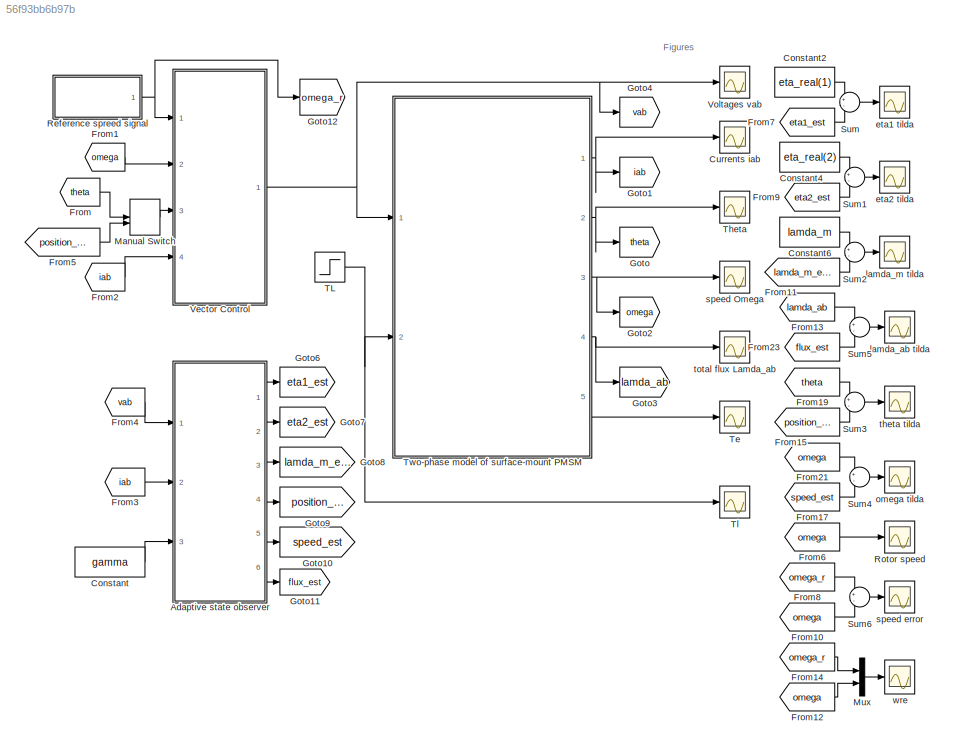
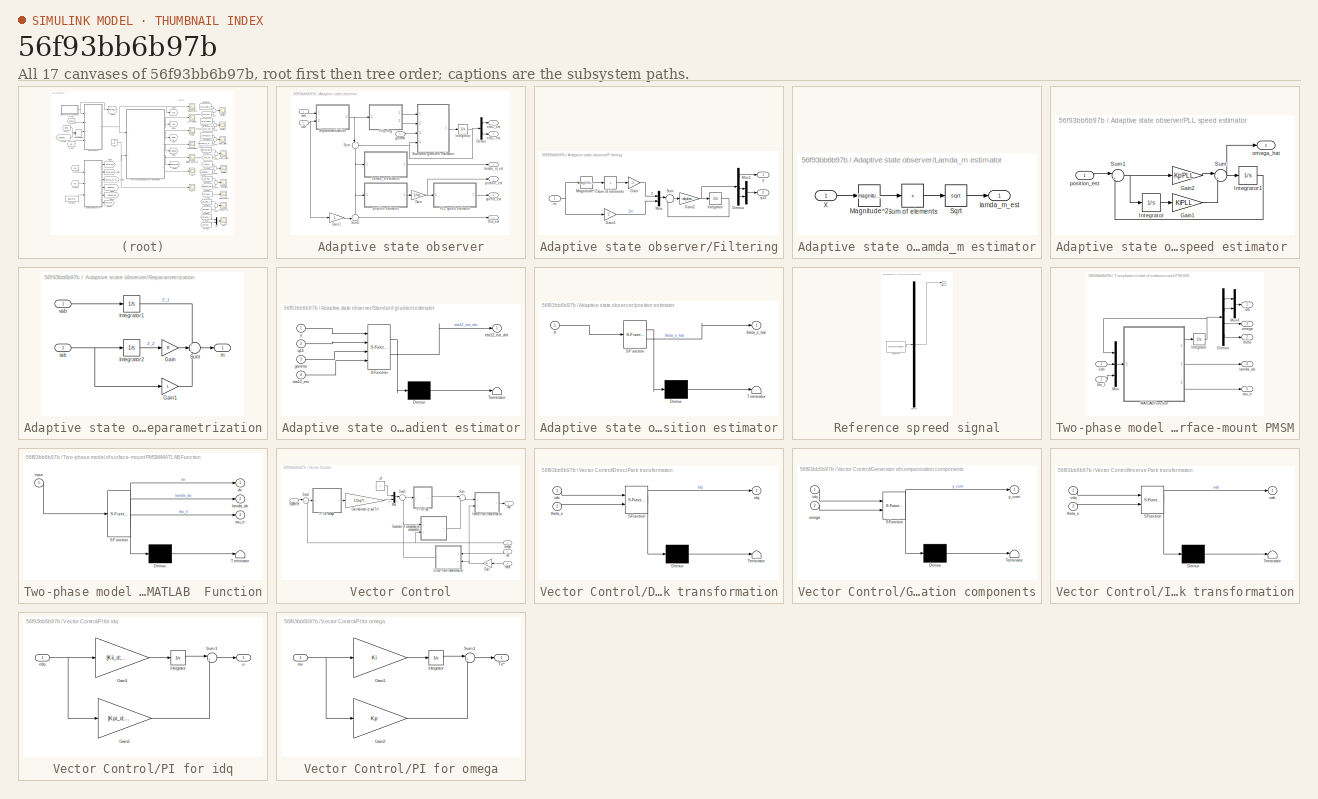
[diagram: thumbnail index - all 17 canvases of the model, root first then tree order]
MODEL slx_56f93bb6b97b
KIND model
CONFIG AbsTol = 1e-9
CONFIG EnableMultiTasking = off
CONFIG FixedStep = Ts
CONFIG MaxStep = 0.001
CONFIG MinStep = auto
CONFIG RelTol = 1e-9
CONFIG SampleTimeConstraint = Unconstrained
CONFIG SolverName = FixedStepAuto
CONFIG StartTime = 0.0
CONFIG StopTime = 1
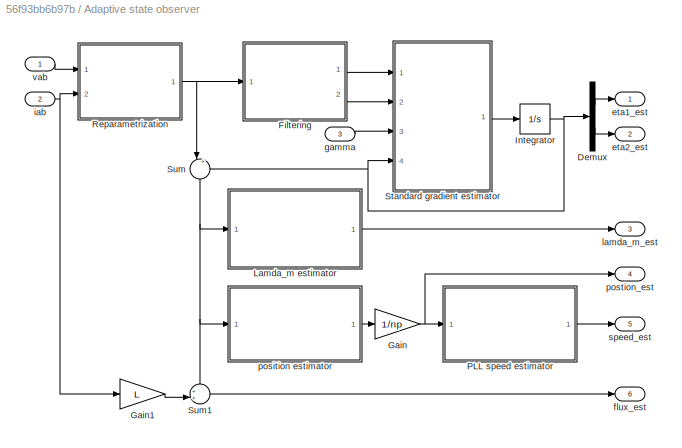
BLOCK [SubSystem] Adaptive state observer
  Ports = [3, 6]
  RequestExecContextInheritance = off
BLOCK [Demux] Adaptive state observer/Demux
  Outputs = 2
  Ports = [1, 2]
BLOCK [SubSystem] Adaptive state observer/Filtering
  Ports = [1, 2]
  RequestExecContextInheritance = off
BLOCK [Demux] Adaptive state observer/Filtering/Demux
  Outputs = 3
  Ports = [1, 3]
BLOCK [Gain] Adaptive state observer/Filtering/Gain
  Gain = -1
BLOCK [Gain] Adaptive state observer/Filtering/Gain1
  Gain = 2
BLOCK [Gain] Adaptive state observer/Filtering/Gain2
  Gain = alpha
BLOCK [Integrator] Adaptive state observer/Filtering/Integrator
  Ports = [1, 1]
BLOCK [Math] Adaptive state observer/Filtering/Magnitude^2
  Operator = magnitude^2
  Ports = [1, 1]
BLOCK [Mux] Adaptive state observer/Filtering/Mux
  DisplayOption = bar
  Inputs = 2
  Ports = [2, 1]
BLOCK [Mux] Adaptive state observer/Filtering/Mux1
  DisplayOption = bar
  Inputs = 2
  Ports = [2, 1]
BLOCK [Sum] Adaptive state observer/Filtering/Sum
  Inputs = |+-
  Ports = [2, 1]
BLOCK [Sum] Adaptive state observer/Filtering/Sum of elements
  IconShape = rectangular
  Inputs = +
  Ports = [1, 1]
BLOCK [Inport] Adaptive state observer/Filtering/m
BLOCK [Outport] Adaptive state observer/Filtering/q12
  Port = 2
BLOCK [Outport] Adaptive state observer/Filtering/y
BLOCK [Gain] Adaptive state observer/Gain
  Gain = 1/np
BLOCK [Gain] Adaptive state observer/Gain1
  Gain = L
BLOCK [Integrator] Adaptive state observer/Integrator
  InitialCondition = [eta1_est_0;eta2_est_0]
  Ports = [1, 1]
BLOCK [SubSystem] Adaptive state observer/Lamda_m estimator
  Ports = [1, 1]
  RequestExecContextInheritance = off
BLOCK [Math] Adaptive state observer/Lamda_m estimator/Magnitude^2
  Operator = magnitude^2
  Ports = [1, 1]
BLOCK [Sqrt] Adaptive state observer/Lamda_m estimator/Sqrt
BLOCK [Sum] Adaptive state observer/Lamda_m estimator/Sum of elements
  IconShape = rectangular
  Inputs = +
  Ports = [1, 1]
BLOCK [Inport] Adaptive state observer/Lamda_m estimator/X
BLOCK [Outport] Adaptive state observer/Lamda_m estimator/lamda_m_est
BLOCK [SubSystem] Adaptive state observer/PLL speed estimator 
  Ports = [1, 1]
  RequestExecContextInheritance = off
BLOCK [Gain] Adaptive state observer/PLL speed estimator /Gain1
  Gain = KiPLL
BLOCK [Gain] Adaptive state observer/PLL speed estimator /Gain2
  Gain = KpPLL
BLOCK [Integrator] Adaptive state observer/PLL speed estimator /Integrator
  Ports = [1, 1]
BLOCK [Integrator] Adaptive state observer/PLL speed estimator /Integrator1
  Ports = [1, 1]
BLOCK [Sum] Adaptive state observer/PLL speed estimator /Sum
  Inputs = |++
  Ports = [2, 1]
BLOCK [Sum] Adaptive state observer/PLL speed estimator /Sum1
  Inputs = |+-
  Ports = [2, 1]
BLOCK [Outport] Adaptive state observer/PLL speed estimator /omega_hat
BLOCK [Inport] Adaptive state observer/PLL speed estimator /position_est
BLOCK [SubSystem] Adaptive state observer/Reparametrization
  Ports = [2, 1]
  RequestExecContextInheritance = off
BLOCK [Gain] Adaptive state observer/Reparametrization/Gain
  Gain = R
BLOCK [Gain] Adaptive state observer/Reparametrization/Gain1
  Gain = L
BLOCK [Integrator] Adaptive state observer/Reparametrization/Integrator1
  InitialCondition = Z1_0
  Ports = [1, 1]
BLOCK [Integrator] Adaptive state observer/Reparametrization/Integrator2
  InitialCondition = Z2_0
  Ports = [1, 1]
BLOCK [Sum] Adaptive state observer/Reparametrization/Sum
  Inputs = +--
  Ports = [3, 1]
BLOCK [Inport] Adaptive state observer/Reparametrization/iab
  Port = 2
BLOCK [Outport] Adaptive state observer/Reparametrization/m
BLOCK [Inport] Adaptive state observer/Reparametrization/vab
BLOCK [SubSystem] Adaptive state observer/Standard gradient estimator
  ErrorFcn = Stateflow.Translate.translate
  PermitHierarchicalResolution = ExplicitOnly
  Ports = [4, 1]
  RequestExecContextInheritance = off
  SFBlockType = MATLAB Function
  TreatAsAtomicUnit = on
BLOCK [Demux] Adaptive state observer/Standard gradient estimator/ Demux 
  Outputs = 1
  Ports = [1, 1]
BLOCK [S-Function] Adaptive state observer/Standard gradient estimator/ SFunction 
  EnableBusSupport = on
  FunctionName = sf_sfun
  PortCounts = [4 2]
  Ports = [4, 2]
  SFcnIsStateOwnerBlock = off
  SFunctionDeploymentMode = off
  Tag = Stateflow S-Function 5
BLOCK [Terminator] Adaptive state observer/Standard gradient estimator/ Terminator 
BLOCK [Inport] Adaptive state observer/Standard gradient estimator/eta12_est
  Port = 4
BLOCK [Outport] Adaptive state observer/Standard gradient estimator/eta12_est_dot
BLOCK [Inport] Adaptive state observer/Standard gradient estimator/gamma
  Port = 3
BLOCK [Inport] Adaptive state observer/Standard gradient estimator/q12
  Port = 2
BLOCK [Inport] Adaptive state observer/Standard gradient estimator/y
BLOCK [Sum] Adaptive state observer/Sum
  Inputs = |++
  NameLocation = left
  Ports = [2, 1]
BLOCK [Sum] Adaptive state observer/Sum1
  Inputs = ++|
  Ports = [2, 1]
BLOCK [Outport] Adaptive state observer/eta1_est
BLOCK [Outport] Adaptive state observer/eta2_est
  Port = 2
BLOCK [Outport] Adaptive state observer/flux_est
  Port = 6
BLOCK [Inport] Adaptive state observer/gamma
  Port = 3
BLOCK [Inport] Adaptive state observer/iab
  Port = 2
BLOCK [Outport] Adaptive state observer/lamda_m_est
  Port = 3
BLOCK [SubSystem] Adaptive state observer/position estimator
  ErrorFcn = Stateflow.Translate.translate
  PermitHierarchicalResolution = ExplicitOnly
  Ports = [1, 1]
  RequestExecContextInheritance = off
  SFBlockType = MATLAB Function
  TreatAsAtomicUnit = on
BLOCK [Demux] Adaptive state observer/position estimator/ Demux 
  Outputs = 1
  Ports = [1, 1]
BLOCK [S-Function] Adaptive state observer/position estimator/ SFunction 
  EnableBusSupport = on
  FunctionName = sf_sfun
  PortCounts = [1 2]
  Ports = [1, 2]
  SFcnIsStateOwnerBlock = off
  SFunctionDeploymentMode = off
  Tag = Stateflow S-Function 6
BLOCK [Terminator] Adaptive state observer/position estimator/ Terminator 
BLOCK [Inport] Adaptive state observer/position estimator/X
BLOCK [Outport] Adaptive state observer/position estimator/theta_e_hat
BLOCK [Outport] Adaptive state observer/postion_est
  Port = 4
BLOCK [Outport] Adaptive state observer/speed_est
  Port = 5
BLOCK [Inport] Adaptive state observer/vab
BLOCK [Constant] Constant
  Value = gamma
BLOCK [Constant] Constant2
  Value = eta_real(1)
BLOCK [Constant] Constant4
  Value = eta_real(2)
BLOCK [Constant] Constant6
  Value = lamda_m
BLOCK [Scope] Currents iab
  Floating = off
  NumInputPorts = 1
  Ports = [1]
  ScopeSpecificationString = Simulink.scopes.TimeScopeBlockCfg('CurrentConfiguration', extmgr.ConfigurationSet(extmgr.Configuration('Core','General UI',true),extmgr.Configuration('Core','Source UI',true),extmgr.Configuration('Sources','WiredSimulink',true,'DataLoggingVariableName','iab','DataLogging',true,'DataLoggingSaveFormat','Array'),extmgr.Configuration('Visuals','Time Domain',true,'SerializedDisplays',{struct('MinYLimRe...<+1560ch>
BLOCK [From] From
  GotoTag = theta
BLOCK [From] From1
  GotoTag = omega
BLOCK [From] From10
  GotoTag = omega
BLOCK [From] From11
  GotoTag = lamda_m_est
BLOCK [From] From12
  GotoTag = omega
BLOCK [From] From13
  GotoTag = lamda_ab
BLOCK [From] From14
  GotoTag = omega_r
BLOCK [From] From15
  GotoTag = position_est
BLOCK [From] From17
  GotoTag = speed_est
BLOCK [From] From19
  GotoTag = theta
BLOCK [From] From2
  GotoTag = iab
BLOCK [From] From21
  GotoTag = omega
BLOCK [From] From23
  GotoTag = flux_est
BLOCK [From] From3
  GotoTag = iab
BLOCK [From] From4
  GotoTag = vab
BLOCK [From] From5
  GotoTag = position_est
BLOCK [From] From6
  GotoTag = omega
BLOCK [From] From7
  GotoTag = eta1_est
BLOCK [From] From8
  GotoTag = omega_r
BLOCK [From] From9
  GotoTag = eta2_est
BLOCK [Goto] Goto
  GotoTag = theta
BLOCK [Goto] Goto1
  GotoTag = iab
BLOCK [Goto] Goto10
  GotoTag = speed_est
BLOCK [Goto] Goto11
  GotoTag = flux_est
BLOCK [Goto] Goto12
  GotoTag = omega_r
BLOCK [Goto] Goto2
  GotoTag = omega
BLOCK [Goto] Goto3
  GotoTag = lamda_ab
BLOCK [Goto] Goto4
  GotoTag = vab
BLOCK [Goto] Goto6
  GotoTag = eta1_est
BLOCK [Goto] Goto7
  GotoTag = eta2_est
BLOCK [Goto] Goto8
  GotoTag = lamda_m_est
BLOCK [Goto] Goto9
  GotoTag = position_est
BLOCK [ManualSwitch] Manual Switch
  CurrentSetting = 0
BLOCK [Mux] Mux
  DisplayOption = bar
  Inputs = 2
  Ports = [2, 1]
BLOCK [SubSystem] Reference spreed signal
  ClipboardFcn = sigbuilder_block('clipboard');
  CloseFcn = sigbuilder_block('close');
  ContinueFcn = sigbuilder_block('continue');
  CopyFcn = sigbuilder_block('copy');
  DeleteFcn = sigbuilder_block('delete');
  LoadFcn = sigbuilder_block('load');
  MaskHideContents = on
  ModelCloseFcn = sigbuilder_block('modelClose');
  NameChangeFcn = sigbuilder_block('namechange');
  OpenFcn = sigbuilder_block('open',[468 193.5 550.5 318.75 ]);
  PauseFcn = sigbuilder_block('pause');
  Ports = [0, 1]
  PreSaveFcn = sigbuilder_block('preSave');
  RequestExecContextInheritance = off
  StartFcn = sigbuilder_block('start');
  StopFcn = sigbuilder_block('stop');
  Tag = STV Subsys
BLOCK [Demux] Reference spreed signal/Demux
  DisplayOption = none
  Outputs = 1
  Ports = [1, 1]
  Tag = STV Demux
BLOCK [FromWorkspace] Reference spreed signal/FromWs
  Tag = STV FromWs
  VariableName = tuvar
BLOCK [Outport] Reference spreed signal/Signal 1
  Tag = STV Outport
BLOCK [Scope] Rotor speed
  Floating = off
  NumInputPorts = 1
  Ports = [1]
  ScopeSpecificationString = Simulink.scopes.TimeScopeBlockCfg('CurrentConfiguration', extmgr.ConfigurationSet(extmgr.Configuration('Core','General UI',true),extmgr.Configuration('Core','Source UI',true),extmgr.Configuration('Sources','WiredSimulink',true,'DataLoggingVariableName','ScopeData1'),extmgr.Configuration('Visuals','Time Domain',true,'SerializedDisplays',{struct('MinYLimReal','-3.61376','MaxYLimReal','4.40375','YLab...<+1725ch>
BLOCK [Sum] Sum
  Inputs = +-
  Ports = [2, 1]
BLOCK [Sum] Sum1
  Inputs = +-
  Ports = [2, 1]
BLOCK [Sum] Sum2
  Inputs = +-
  Ports = [2, 1]
BLOCK [Sum] Sum3
  Inputs = +-
  Ports = [2, 1]
BLOCK [Sum] Sum4
  Inputs = +-
  Ports = [2, 1]
BLOCK [Sum] Sum5
  Inputs = +-
  Ports = [2, 1]
BLOCK [Sum] Sum6
  Inputs = +-
  Ports = [2, 1]
BLOCK [Step] TL
  After = TL1
  SampleTime = 0
  Time = 0.5
BLOCK [Scope] Te
  Floating = off
  NumInputPorts = 1
  Ports = [1]
  ScopeSpecificationString = Simulink.scopes.TimeScopeBlockCfg('CurrentConfiguration', extmgr.ConfigurationSet(extmgr.Configuration('Core','General UI',true),extmgr.Configuration('Core','Source UI',true),extmgr.Configuration('Sources','WiredSimulink',true,'DataLogging',true,'DataLoggingVariableName','Te','DataLoggingSaveFormat','Array'),extmgr.Configuration('Visuals','Time Domain',true,'SerializedDisplays',{struct('MinYLimRea...<+1475ch>
BLOCK [Scope] Theta
  Floating = off
  NumInputPorts = 1
  Ports = [1]
  ScopeSpecificationString = Simulink.scopes.TimeScopeBlockCfg('CurrentConfiguration', extmgr.ConfigurationSet(extmgr.Configuration('Core','General UI',true),extmgr.Configuration('Core','Source UI',true),extmgr.Configuration('Sources','WiredSimulink',true,'DataLoggingVariableName','theta','DataLogging',true,'DataLoggingSaveFormat','Array'),extmgr.Configuration('Visuals','Time Domain',true,'SerializedDisplays',{struct('MinYLim...<+1786ch>
BLOCK [Scope] Tl
  Floating = off
  NumInputPorts = 1
  Ports = [1]
  ScopeSpecificationString = Simulink.scopes.TimeScopeBlockCfg('CurrentConfiguration', extmgr.ConfigurationSet(extmgr.Configuration('Core','General UI',true),extmgr.Configuration('Core','Source UI',true),extmgr.Configuration('Sources','WiredSimulink',true,'DataLogging',true,'DataLoggingVariableName','TL','DataLoggingSaveFormat','Array'),extmgr.Configuration('Visuals','Time Domain',true,'SerializedDisplays',{struct('MinYLimRea...<+1434ch>
BLOCK [SubSystem] Two-phase model of surface-mount PMSM
  Ports = [2, 5]
  RequestExecContextInheritance = off
BLOCK [Demux] Two-phase model of surface-mount PMSM/Demux
  Ports = [1, 4]
BLOCK [Integrator] Two-phase model of surface-mount PMSM/Integrator
  InitialCondition = [iab_0;omega_0;theta_0]
  Ports = [1, 1]
BLOCK [SubSystem] Two-phase model of surface-mount PMSM/MATLAB  Function
  ErrorFcn = Stateflow.Translate.translate
  PermitHierarchicalResolution = ExplicitOnly
  Ports = [1, 3]
  RequestExecContextInheritance = off
  SFBlockType = MATLAB Function
  TreatAsAtomicUnit = on
BLOCK [Demux] Two-phase model of surface-mount PMSM/MATLAB  Function/ Demux 
  Outputs = 1
  Ports = [1, 1]
BLOCK [S-Function] Two-phase model of surface-mount PMSM/MATLAB  Function/ SFunction 
  EnableBusSupport = on
  FunctionName = sf_sfun
  Parameters = B,Jm,L,R,lamda_m,np
  PortCounts = [1 4]
  Ports = [1, 4]
  SFcnIsStateOwnerBlock = off
  SFunctionDeploymentMode = off
  Tag = Stateflow S-Function 2
BLOCK [Terminator] Two-phase model of surface-mount PMSM/MATLAB  Function/ Terminator 
BLOCK [Outport] Two-phase model of surface-mount PMSM/MATLAB  Function/dx
  VectorParamsAs1DForOutWhenUnconnected = off
BLOCK [Inport] Two-phase model of surface-mount PMSM/MATLAB  Function/input
BLOCK [Outport] Two-phase model of surface-mount PMSM/MATLAB  Function/lamda_ab
  Port = 2
BLOCK [Outport] Two-phase model of surface-mount PMSM/MATLAB  Function/tau_e
  Port = 3
BLOCK [Mux] Two-phase model of surface-mount PMSM/Mux
  DisplayOption = bar
  Inputs = 3
  Ports = [3, 1]
BLOCK [Mux] Two-phase model of surface-mount PMSM/Mux4
  DisplayOption = bar
  Inputs = 2
  Ports = [2, 1]
BLOCK [Outport] Two-phase model of surface-mount PMSM/iab
BLOCK [Outport] Two-phase model of surface-mount PMSM/lamda_ab
  Port = 4
BLOCK [Outport] Two-phase model of surface-mount PMSM/omega
  Port = 3
BLOCK [Inport] Two-phase model of surface-mount PMSM/tau_L
  Port = 2
BLOCK [Outport] Two-phase model of surface-mount PMSM/tau_e
  Port = 5
BLOCK [Outport] Two-phase model of surface-mount PMSM/theta
  OutDataTypeStr = double
  Port = 2
  PortDimensions = 1
BLOCK [Inport] Two-phase model of surface-mount PMSM/vab
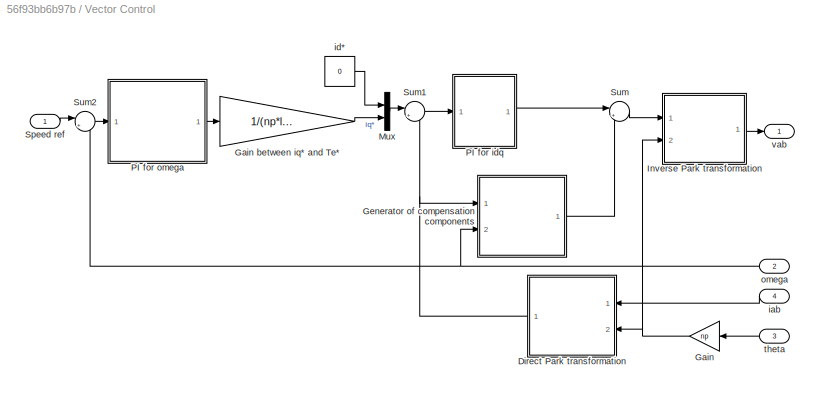
BLOCK [SubSystem] Vector Control
  Ports = [4, 1]
  RequestExecContextInheritance = off
BLOCK [SubSystem] Vector Control/Direct Park transformation
  ErrorFcn = Stateflow.Translate.translate
  PermitHierarchicalResolution = ExplicitOnly
  Ports = [2, 1]
  RequestExecContextInheritance = off
  SFBlockType = MATLAB Function
  TreatAsAtomicUnit = on
BLOCK [Demux] Vector Control/Direct Park transformation/ Demux 
  Outputs = 1
  Ports = [1, 1]
BLOCK [S-Function] Vector Control/Direct Park transformation/ SFunction 
  EnableBusSupport = on
  FunctionName = sf_sfun
  PortCounts = [2 2]
  Ports = [2, 2]
  SFcnIsStateOwnerBlock = off
  SFunctionDeploymentMode = off
  Tag = Stateflow S-Function 1
BLOCK [Terminator] Vector Control/Direct Park transformation/ Terminator 
BLOCK [Inport] Vector Control/Direct Park transformation/iab
BLOCK [Outport] Vector Control/Direct Park transformation/idq
BLOCK [Inport] Vector Control/Direct Park transformation/theta_e
  Port = 2
BLOCK [Gain] Vector Control/Gain
  Gain = np
BLOCK [Gain] Vector Control/Gain between iq* and Te*
  Gain = 1/(np*lamda_m)
BLOCK [SubSystem] Vector Control/Generator of compensation components
  ErrorFcn = Stateflow.Translate.translate
  NameLocation = top
  PermitHierarchicalResolution = ExplicitOnly
  Ports = [2, 1]
  RequestExecContextInheritance = off
  SFBlockType = MATLAB Function
  TreatAsAtomicUnit = on
BLOCK [Demux] Vector Control/Generator of compensation components/ Demux 
  Outputs = 1
  Ports = [1, 1]
BLOCK [S-Function] Vector Control/Generator of compensation components/ SFunction 
  EnableBusSupport = on
  FunctionName = sf_sfun
  Parameters = L,lamda_m,np
  PortCounts = [2 2]
  Ports = [2, 2]
  SFcnIsStateOwnerBlock = off
  SFunctionDeploymentMode = off
  Tag = Stateflow S-Function 4
BLOCK [Terminator] Vector Control/Generator of compensation components/ Terminator 
BLOCK [Inport] Vector Control/Generator of compensation components/idq
BLOCK [Inport] Vector Control/Generator of compensation components/omega
  Port = 2
BLOCK [Outport] Vector Control/Generator of compensation components/y_com
BLOCK [SubSystem] Vector Control/Inverse Park transformation
  ErrorFcn = Stateflow.Translate.translate
  PermitHierarchicalResolution = ExplicitOnly
  Ports = [2, 1]
  RequestExecContextInheritance = off
  SFBlockType = MATLAB Function
  TreatAsAtomicUnit = on
BLOCK [Demux] Vector Control/Inverse Park transformation/ Demux 
  Outputs = 1
  Ports = [1, 1]
BLOCK [S-Function] Vector Control/Inverse Park transformation/ SFunction 
  EnableBusSupport = on
  FunctionName = sf_sfun
  PortCounts = [2 2]
  Ports = [2, 2]
  SFcnIsStateOwnerBlock = off
  SFunctionDeploymentMode = off
  Tag = Stateflow S-Function 3
BLOCK [Terminator] Vector Control/Inverse Park transformation/ Terminator 
BLOCK [Inport] Vector Control/Inverse Park transformation/theta_e
  Port = 2
BLOCK [Outport] Vector Control/Inverse Park transformation/vab
BLOCK [Inport] Vector Control/Inverse Park transformation/vdq
BLOCK [Mux] Vector Control/Mux
  DisplayOption = bar
  Inputs = 2
  Ports = [2, 1]
BLOCK [SubSystem] Vector Control/PI for idq
  Ports = [1, 1]
  RequestExecContextInheritance = off
BLOCK [Gain] Vector Control/PI for idq/Gain1
  Gain = [Kii_d;Kii_q]
BLOCK [Gain] Vector Control/PI for idq/Gain2
  Gain = [Kpi_d;Kpi_q]
BLOCK [Integrator] Vector Control/PI for idq/Integrator
  Ports = [1, 1]
BLOCK [Sum] Vector Control/PI for idq/Sum1
  Inputs = |++
  Ports = [2, 1]
BLOCK [Inport] Vector Control/PI for idq/edq
BLOCK [Outport] Vector Control/PI for idq/u
BLOCK [SubSystem] Vector Control/PI for omega
  Ports = [1, 1]
  RequestExecContextInheritance = off
BLOCK [Gain] Vector Control/PI for omega/Gain1
  Gain = Ki
BLOCK [Gain] Vector Control/PI for omega/Gain2
  Gain = Kp
BLOCK [Integrator] Vector Control/PI for omega/Integrator
  Ports = [1, 1]
BLOCK [Sum] Vector Control/PI for omega/Sum1
  Inputs = |++
  Ports = [2, 1]
BLOCK [Outport] Vector Control/PI for omega/Te*
BLOCK [Inport] Vector Control/PI for omega/ew
BLOCK [Inport] Vector Control/Speed ref
BLOCK [Sum] Vector Control/Sum
  Inputs = |++
  Ports = [2, 1]
BLOCK [Sum] Vector Control/Sum1
  Inputs = |+-
  Ports = [2, 1]
BLOCK [Sum] Vector Control/Sum2
  Inputs = |+-
  Ports = [2, 1]
BLOCK [Inport] Vector Control/iab
  Port = 4
BLOCK [Constant] Vector Control/id*
  Value = 0
BLOCK [Inport] Vector Control/omega
  Port = 2
BLOCK [Inport] Vector Control/theta
  Port = 3
BLOCK [Outport] Vector Control/vab
BLOCK [Scope] Voltages vab
  Floating = off
  NumInputPorts = 1
  Ports = [1]
  ScopeSpecificationString = Simulink.scopes.TimeScopeBlockCfg('CurrentConfiguration', extmgr.ConfigurationSet(extmgr.Configuration('Core','General UI',true),extmgr.Configuration('Core','Source UI',true),extmgr.Configuration('Sources','WiredSimulink',true,'DataLoggingVariableName','vab','DataLogging',true,'DataLoggingSaveFormat','Array'),extmgr.Configuration('Visuals','Time Domain',true,'SerializedDisplays',{struct('MinYLimRe...<+1861ch>
BLOCK [Scope] eta1 tilda
  Floating = off
  NumInputPorts = 1
  Ports = [1]
  ScopeSpecificationString = Simulink.scopes.TimeScopeBlockCfg('CurrentConfiguration', extmgr.ConfigurationSet(extmgr.Configuration('Core','General UI',true),extmgr.Configuration('Core','Source UI',true),extmgr.Configuration('Sources','WiredSimulink',true,'DataLoggingVariableName','eta1','DataLogging',true,'DataLoggingSaveFormat','Array'),extmgr.Configuration('Visuals','Time Domain',true,'SerializedDisplays',{struct('MinYLimR...<+1711ch>
BLOCK [Scope] eta2 tilda
  Floating = off
  NumInputPorts = 1
  Ports = [1]
  ScopeSpecificationString = Simulink.scopes.TimeScopeBlockCfg('CurrentConfiguration', extmgr.ConfigurationSet(extmgr.Configuration('Core','General UI',true),extmgr.Configuration('Core','Source UI',true),extmgr.Configuration('Sources','WiredSimulink',true,'DataLoggingVariableName','eta2','DataLogging',true,'DataLoggingSaveFormat','Array'),extmgr.Configuration('Visuals','Time Domain',true,'SerializedDisplays',{struct('MinYLimR...<+1712ch>
BLOCK [Scope] lamda_ab tilda
  Floating = off
  NumInputPorts = 1
  Ports = [1]
  ScopeSpecificationString = Simulink.scopes.TimeScopeBlockCfg('CurrentConfiguration', extmgr.ConfigurationSet(extmgr.Configuration('Core','General UI',true),extmgr.Configuration('Core','Source UI',true),extmgr.Configuration('Sources','WiredSimulink',true,'DataLoggingVariableName','lamda_ab_e','DataLogging',true,'DataLoggingSaveFormat','Array'),extmgr.Configuration('Visuals','Time Domain',true,'SerializedDisplays',{struct('Mi...<+1790ch>
BLOCK [Scope] lamda_m tilda
  Floating = off
  NumInputPorts = 1
  Ports = [1]
  ScopeSpecificationString = Simulink.scopes.TimeScopeBlockCfg('CurrentConfiguration', extmgr.ConfigurationSet(extmgr.Configuration('Core','General UI',true),extmgr.Configuration('Core','Source UI',true),extmgr.Configuration('Sources','WiredSimulink',true,'DataLoggingVariableName','lamda_m_e','DataLogging',true,'DataLoggingSaveFormat','Array'),extmgr.Configuration('Visuals','Time Domain',true,'SerializedDisplays',{struct('Min...<+1431ch>
BLOCK [Scope] omega tilda
  Floating = off
  NumInputPorts = 1
  Ports = [1]
  ScopeSpecificationString = Simulink.scopes.TimeScopeBlockCfg('CurrentConfiguration', extmgr.ConfigurationSet(extmgr.Configuration('Core','General UI',true),extmgr.Configuration('Core','Source UI',true),extmgr.Configuration('Sources','WiredSimulink',true,'DataLoggingVariableName','omega_est_e','DataLogging',true,'DataLoggingSaveFormat','Array'),extmgr.Configuration('Visuals','Time Domain',true,'SerializedDisplays',{struct('M...<+1790ch>
BLOCK [Scope] speed Omega
  Floating = off
  NumInputPorts = 1
  Ports = [1]
  ScopeSpecificationString = Simulink.scopes.TimeScopeBlockCfg('CurrentConfiguration', extmgr.ConfigurationSet(extmgr.Configuration('Core','General UI',true),extmgr.Configuration('Core','Source UI',true),extmgr.Configuration('Sources','WiredSimulink',true,'DataLoggingVariableName','Omega','DataLogging',true,'DataLoggingSaveFormat','Array'),extmgr.Configuration('Visuals','Time Domain',true,'SerializedDisplays',{struct('MinYLim...<+1830ch>
BLOCK [Scope] speed error
  Floating = off
  NumInputPorts = 1
  Ports = [1]
  ScopeSpecificationString = Simulink.scopes.TimeScopeBlockCfg('CurrentConfiguration', extmgr.ConfigurationSet(extmgr.Configuration('Core','General UI',true),extmgr.Configuration('Core','Source UI',true),extmgr.Configuration('Sources','WiredSimulink',true,'DataLoggingVariableName','we','DataLogging',true,'DataLoggingSaveFormat','Array'),extmgr.Configuration('Visuals','Time Domain',true,'SerializedDisplays',{struct('MinYLimRea...<+1764ch>
BLOCK [Scope] theta tilda
  Floating = off
  NumInputPorts = 1
  Ports = [1]
  ScopeSpecificationString = Simulink.scopes.TimeScopeBlockCfg('CurrentConfiguration', extmgr.ConfigurationSet(extmgr.Configuration('Core','General UI',true),extmgr.Configuration('Core','Source UI',true),extmgr.Configuration('Sources','WiredSimulink',true,'DataLoggingVariableName','theta_e','DataLogging',true,'DataLoggingSaveFormat','Array'),extmgr.Configuration('Visuals','Time Domain',true,'SerializedDisplays',{struct('MinYL...<+1777ch>
BLOCK [Scope] total flux Lamda_ab
  Floating = off
  NumInputPorts = 1
  Ports = [1]
  ScopeSpecificationString = Simulink.scopes.TimeScopeBlockCfg('CurrentConfiguration', extmgr.ConfigurationSet(extmgr.Configuration('Core','General UI',true),extmgr.Configuration('Core','Source UI',true),extmgr.Configuration('Sources','WiredSimulink',true,'DataLoggingVariableName','Lamda_ab','DataLogging',true,'DataLoggingSaveFormat','Array'),extmgr.Configuration('Visuals','Time Domain',true,'SerializedDisplays',{struct('MinY...<+1943ch>
BLOCK [Scope] wre
  Floating = off
  NumInputPorts = 1
  Ports = [1]
  ScopeSpecificationString = Simulink.scopes.TimeScopeBlockCfg('CurrentConfiguration', extmgr.ConfigurationSet(extmgr.Configuration('Core','General UI',true),extmgr.Configuration('Core','Source UI',true),extmgr.Configuration('Sources','WiredSimulink',true,'DataLoggingVariableName','wre','DataLogging',true,'DataLoggingSaveFormat','Array'),extmgr.Configuration('Visuals','Time Domain',true,'SerializedDisplays',{struct('MinYLimRe...<+1859ch>
ANNOTATION (root): Figures
LINE Adaptive state observer/Demux:1 -> Adaptive state observer/eta1_est:1
LINE Adaptive state observer/Demux:2 -> Adaptive state observer/eta2_est:1
LINE Adaptive state observer/Filtering/Demux:1 -> Adaptive state observer/Filtering/y:1
LINE Adaptive state observer/Filtering/Demux:2 -> Adaptive state observer/Filtering/Mux1:1
LINE Adaptive state observer/Filtering/Demux:3 -> Adaptive state observer/Filtering/Mux1:2
LINE Adaptive state observer/Filtering/Gain1:1 -> Adaptive state observer/Filtering/Mux:2
NET Adaptive state observer/Filtering/Gain2:1 -> Adaptive state observer/Filtering/Demux:1, Adaptive state observer/Filtering/Integrator:1
LINE Adaptive state observer/Filtering/Gain:1 -> Adaptive state observer/Filtering/Mux:1
LINE Adaptive state observer/Filtering/Integrator:1 -> Adaptive state observer/Filtering/Sum:2
LINE Adaptive state observer/Filtering/Magnitude^2:1 -> Adaptive state observer/Filtering/Sum of elements:1
LINE Adaptive state observer/Filtering/Mux1:1 -> Adaptive state observer/Filtering/q12:1
LINE Adaptive state observer/Filtering/Mux:1 -> Adaptive state observer/Filtering/Sum:1
LINE Adaptive state observer/Filtering/Sum of elements:1 -> Adaptive state observer/Filtering/Gain:1
LINE Adaptive state observer/Filtering/Sum:1 -> Adaptive state observer/Filtering/Gain2:1
NET Adaptive state observer/Filtering/m:1 -> Adaptive state observer/Filtering/Gain1:1, Adaptive state observer/Filtering/Magnitude^2:1
LINE Adaptive state observer/Filtering:1 -> Adaptive state observer/Standard gradient estimator:1
LINE Adaptive state observer/Filtering:2 -> Adaptive state observer/Standard gradient estimator:2
LINE Adaptive state observer/Gain1:1 -> Adaptive state observer/Sum1:2
NET Adaptive state observer/Gain:1 -> Adaptive state observer/PLL speed estimator :1, Adaptive state observer/postion_est:1
NET Adaptive state observer/Integrator:1 -> Adaptive state observer/Demux:1, Adaptive state observer/Standard gradient estimator:4, Adaptive state observer/Sum:2
LINE Adaptive state observer/Lamda_m estimator/Magnitude^2:1 -> Adaptive state observer/Lamda_m estimator/Sum of elements:1
LINE Adaptive state observer/Lamda_m estimator/Sqrt:1 -> Adaptive state observer/Lamda_m estimator/lamda_m_est:1
LINE Adaptive state observer/Lamda_m estimator/Sum of elements:1 -> Adaptive state observer/Lamda_m estimator/Sqrt:1
LINE Adaptive state observer/Lamda_m estimator/X:1 -> Adaptive state observer/Lamda_m estimator/Magnitude^2:1
LINE Adaptive state observer/Lamda_m estimator:1 -> Adaptive state observer/lamda_m_est:1
LINE Adaptive state observer/PLL speed estimator /Gain1:1 -> Adaptive state observer/PLL speed estimator /Sum:2
LINE Adaptive state observer/PLL speed estimator /Gain2:1 -> Adaptive state observer/PLL speed estimator /Sum:1
LINE Adaptive state observer/PLL speed estimator /Integrator1:1 -> Adaptive state observer/PLL speed estimator /Sum1:2
LINE Adaptive state observer/PLL speed estimator /Integrator:1 -> Adaptive state observer/PLL speed estimator /Gain1:1
NET Adaptive state observer/PLL speed estimator /Sum1:1 -> Adaptive state observer/PLL speed estimator /Gain2:1, Adaptive state observer/PLL speed estimator /Integrator:1
NET Adaptive state observer/PLL speed estimator /Sum:1 -> Adaptive state observer/PLL speed estimator /Integrator1:1, Adaptive state observer/PLL speed estimator /omega_hat:1
LINE Adaptive state observer/PLL speed estimator /position_est:1 -> Adaptive state observer/PLL speed estimator /Sum1:1
LINE Adaptive state observer/PLL speed estimator :1 -> Adaptive state observer/speed_est:1
LINE Adaptive state observer/Reparametrization/Gain1:1 -> Adaptive state observer/Reparametrization/Sum:3
LINE Adaptive state observer/Reparametrization/Gain:1 -> Adaptive state observer/Reparametrization/Sum:2
LINE Adaptive state observer/Reparametrization/Integrator1:1 -> Adaptive state observer/Reparametrization/Sum:1
LINE Adaptive state observer/Reparametrization/Integrator2:1 -> Adaptive state observer/Reparametrization/Gain:1
LINE Adaptive state observer/Reparametrization/Sum:1 -> Adaptive state observer/Reparametrization/m:1
NET Adaptive state observer/Reparametrization/iab:1 -> Adaptive state observer/Reparametrization/Gain1:1, Adaptive state observer/Reparametrization/Integrator2:1
LINE Adaptive state observer/Reparametrization/vab:1 -> Adaptive state observer/Reparametrization/Integrator1:1
NET Adaptive state observer/Reparametrization:1 -> Adaptive state observer/Filtering:1, Adaptive state observer/Sum:1
LINE Adaptive state observer/Standard gradient estimator:1 -> Adaptive state observer/Integrator:1
LINE Adaptive state observer/Sum1:1 -> Adaptive state observer/flux_est:1
NET Adaptive state observer/Sum:1 -> Adaptive state observer/Lamda_m estimator:1, Adaptive state observer/Sum1:1, Adaptive state observer/position estimator:1
LINE Adaptive state observer/gamma:1 -> Adaptive state observer/Standard gradient estimator:3
NET Adaptive state observer/iab:1 -> Adaptive state observer/Gain1:1, Adaptive state observer/Reparametrization:2
LINE Adaptive state observer/position estimator:1 -> Adaptive state observer/Gain:1
LINE Adaptive state observer/vab:1 -> Adaptive state observer/Reparametrization:1
LINE Adaptive state observer:1 -> Goto6:1
LINE Adaptive state observer:2 -> Goto7:1
LINE Adaptive state observer:3 -> Goto8:1
LINE Adaptive state observer:4 -> Goto9:1
LINE Adaptive state observer:5 -> Goto10:1
LINE Adaptive state observer:6 -> Goto11:1
LINE Constant2:1 -> Sum:1
LINE Constant4:1 -> Sum1:1
LINE Constant6:1 -> Sum2:1
LINE Constant:1 -> Adaptive state observer:3
LINE From10:1 -> Sum6:2
LINE From11:1 -> Sum2:2
LINE From12:1 -> Mux:2
LINE From13:1 -> Sum5:1
LINE From14:1 -> Mux:1
LINE From15:1 -> Sum3:2
LINE From17:1 -> Sum4:2
LINE From19:1 -> Sum3:1
LINE From1:1 -> Vector Control:2
LINE From21:1 -> Sum4:1
LINE From23:1 -> Sum5:2
LINE From2:1 -> Vector Control:4
LINE From3:1 -> Adaptive state observer:2
LINE From4:1 -> Adaptive state observer:1
LINE From5:1 -> Manual Switch:2
LINE From6:1 -> Rotor speed:1
LINE From7:1 -> Sum:2
LINE From8:1 -> Sum6:1
LINE From9:1 -> Sum1:2
LINE From:1 -> Manual Switch:1
LINE Manual Switch:1 -> Vector Control:3
LINE Mux:1 -> wre:1
NET Reference spreed signal:1 -> Goto12:1, Vector Control:1
LINE Sum1:1 -> eta2 tilda:1
LINE Sum2:1 -> lamda_m tilda:1
LINE Sum3:1 -> theta tilda:1
LINE Sum4:1 -> omega tilda:1
LINE Sum5:1 -> lamda_ab tilda:1
LINE Sum6:1 -> speed error:1
LINE Sum:1 -> eta1 tilda:1
NET TL:1 -> Tl:1, Two-phase model of surface-mount PMSM:2
LINE Two-phase model of surface-mount PMSM/Demux:1 -> Two-phase model of surface-mount PMSM/Mux4:1
LINE Two-phase model of surface-mount PMSM/Demux:2 -> Two-phase model of surface-mount PMSM/Mux4:2
LINE Two-phase model of surface-mount PMSM/Demux:3 -> Two-phase model of surface-mount PMSM/omega:1
LINE Two-phase model of surface-mount PMSM/Demux:4 -> Two-phase model of surface-mount PMSM/theta:1
NET Two-phase model of surface-mount PMSM/Integrator:1 -> Two-phase model of surface-mount PMSM/Demux:1, Two-phase model of surface-mount PMSM/Mux:1
LINE Two-phase model of surface-mount PMSM/MATLAB  Function:1 -> Two-phase model of surface-mount PMSM/Integrator:1
LINE Two-phase model of surface-mount PMSM/MATLAB  Function:2 -> Two-phase model of surface-mount PMSM/lamda_ab:1
LINE Two-phase model of surface-mount PMSM/MATLAB  Function:3 -> Two-phase model of surface-mount PMSM/tau_e:1
LINE Two-phase model of surface-mount PMSM/Mux4:1 -> Two-phase model of surface-mount PMSM/iab:1
LINE Two-phase model of surface-mount PMSM/Mux:1 -> Two-phase model of surface-mount PMSM/MATLAB  Function:1
LINE Two-phase model of surface-mount PMSM/tau_L:1 -> Two-phase model of surface-mount PMSM/Mux:3
LINE Two-phase model of surface-mount PMSM/vab:1 -> Two-phase model of surface-mount PMSM/Mux:2
NET Two-phase model of surface-mount PMSM:1 -> Currents iab:1, Goto1:1
NET Two-phase model of surface-mount PMSM:2 -> Goto:1, Theta:1
NET Two-phase model of surface-mount PMSM:3 -> Goto2:1, speed Omega:1
NET Two-phase model of surface-mount PMSM:4 -> Goto3:1, total flux Lamda_ab:1
LINE Two-phase model of surface-mount PMSM:5 -> Te:1
NET Vector Control/Direct Park transformation:1 -> Vector Control/Generator of compensation components:1, Vector Control/Sum1:2
LINE Vector Control/Gain between iq* and Te*:1 -> Vector Control/Mux:2
NET Vector Control/Gain:1 -> Vector Control/Direct Park transformation:2, Vector Control/Inverse Park transformation:2
LINE Vector Control/Generator of compensation components:1 -> Vector Control/Sum:2
LINE Vector Control/Inverse Park transformation:1 -> Vector Control/vab:1
LINE Vector Control/Mux:1 -> Vector Control/Sum1:1
LINE Vector Control/PI for idq/Gain1:1 -> Vector Control/PI for idq/Integrator:1
LINE Vector Control/PI for idq/Gain2:1 -> Vector Control/PI for idq/Sum1:2
LINE Vector Control/PI for idq/Integrator:1 -> Vector Control/PI for idq/Sum1:1
LINE Vector Control/PI for idq/Sum1:1 -> Vector Control/PI for idq/u:1
NET Vector Control/PI for idq/edq:1 -> Vector Control/PI for idq/Gain1:1, Vector Control/PI for idq/Gain2:1
LINE Vector Control/PI for idq:1 -> Vector Control/Sum:1
LINE Vector Control/PI for omega/Gain1:1 -> Vector Control/PI for omega/Integrator:1
LINE Vector Control/PI for omega/Gain2:1 -> Vector Control/PI for omega/Sum1:2
LINE Vector Control/PI for omega/Integrator:1 -> Vector Control/PI for omega/Sum1:1
LINE Vector Control/PI for omega/Sum1:1 -> Vector Control/PI for omega/Te*:1
NET Vector Control/PI for omega/ew:1 -> Vector Control/PI for omega/Gain1:1, Vector Control/PI for omega/Gain2:1
LINE Vector Control/PI for omega:1 -> Vector Control/Gain between iq* and Te*:1
LINE Vector Control/Speed ref:1 -> Vector Control/Sum2:1
LINE Vector Control/Sum1:1 -> Vector Control/PI for idq:1
LINE Vector Control/Sum2:1 -> Vector Control/PI for omega:1
LINE Vector Control/Sum:1 -> Vector Control/Inverse Park transformation:1
LINE Vector Control/iab:1 -> Vector Control/Direct Park transformation:1
LINE Vector Control/id*:1 -> Vector Control/Mux:1
NET Vector Control/omega:1 -> Vector Control/Generator of compensation components:2, Vector Control/Sum2:2
LINE Vector Control/theta:1 -> Vector Control/Gain:1
NET Vector Control:1 -> Goto4:1, Two-phase model of surface-mount PMSM:1, Voltages vab:1
note: NET lines group one-source signal fan-out (src -> all destinations, sorted); 1:1 wires keep LINE
CHART Vector Control/Direct Park transformation states=1 transitions=1
  STATE_LABEL 'eML_blk_kernel()'
  STATE_LABEL 'SCRIPT:\nfunction idq = fcn(iab,theta_e)\nidq = cos(theta_e+[0 -pi/2;pi/2 0])*iab;\nend\n'
CHART Two-phase model of surface-mount PMSM/MATLAB  Function states=1 transitions=1
  STATE_LABEL 'eML_blk_kernel()'
  STATE_LABEL "SCRIPT:\nfunction [dx,lamda_ab,tau_e]  = fcn(input,R, L, lamda_m, np, Jm, B)\nia=input(1);\nib=input(2);\niab=[ia;ib];\nomega=input(3);\ntheta=input(4);\nva=input(5);\nvb=input(6);\nvab=[va;vb];\ntau_L=input(7);\n\n%%%%%%%\nC=[cos(np*theta);sin(np*theta)];\nJ=[0 -1;1 0];\ndC=np*J*C;\n%%%%%%%\ndot_iab=(1/L)*(-R*iab-omega*lamda_m*dC+vab);\ndot_omega=(1/Jm)*(-B*omega+lamda_m*iab'*dC-tau_L);\ndot_theta=omega;\nlamda_ab=L...<+89ch>"
CHART Vector Control/Inverse Park transformation states=1 transitions=1
  STATE_LABEL 'eML_blk_kernel()'
  STATE_LABEL 'SCRIPT:\nfunction vab = fcn(vdq,theta_e)\nvab = cos(theta_e+[0 pi/2;-pi/2 0])*vdq;\nend\n'
CHART Vector Control/Generator of compensation components states=1 transitions=1
  STATE_LABEL 'eML_blk_kernel()'
  STATE_LABEL 'SCRIPT:\nfunction y_com = fcn(idq,omega,np, L, lamda_m)\ny_com=np*omega*[-L*idq(2);(L*idq(1)+lamda_m)];\nend\n'
CHART Adaptive state observer/Standard gradient estimator states=1 transitions=1
  STATE_LABEL 'eML_blk_kernel()'
  STATE_LABEL "SCRIPT:\nfunction eta12_est_dot = fcn(y,q12,gamma,eta12_est)\neta12_est_dot=gamma*q12*(y-q12'*eta12_est);\nend\n"
CHART Adaptive state observer/position estimator states=1 transitions=1
  STATE_LABEL 'eML_blk_kernel()'
  STATE_LABEL 'SCRIPT:\nfunction theta_e_hat = fcn(X)\n\npersistent atan2_prev;\nif(isempty(atan2_prev))\n    atan2_prev=0;\nend\n\npersistent theta_e_hat_prev;\nif(isempty(theta_e_hat_prev))\n    theta_e_hat_prev=0;\nend\n\ntan2_now=atan2(X(2),X(1));\n\nDif=tan2_now-atan2_prev;\n\nif(Dif>pi)\n    Dif=Dif-2*pi;\nelseif(Dif<(-pi))\n    Dif=Dif+2*pi;\nend\ntheta_e_hat=theta_e_hat_prev+Dif;\natan2_prev=tan2_now;\ntheta_e_hat_prev=theta_e_...<+9ch>'
CHART  states=0 transitions=0
CHART  states=0 transitions=0
CHART  states=0 transitions=0
CHART  states=0 transitions=0
CHART  states=0 transitions=0
CHART  states=0 transitions=0
